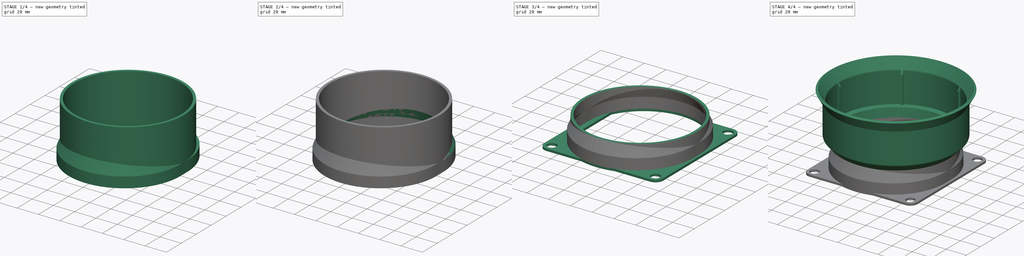
[diagram: build sequence overview — one tinted view per stage of 4, left to right]
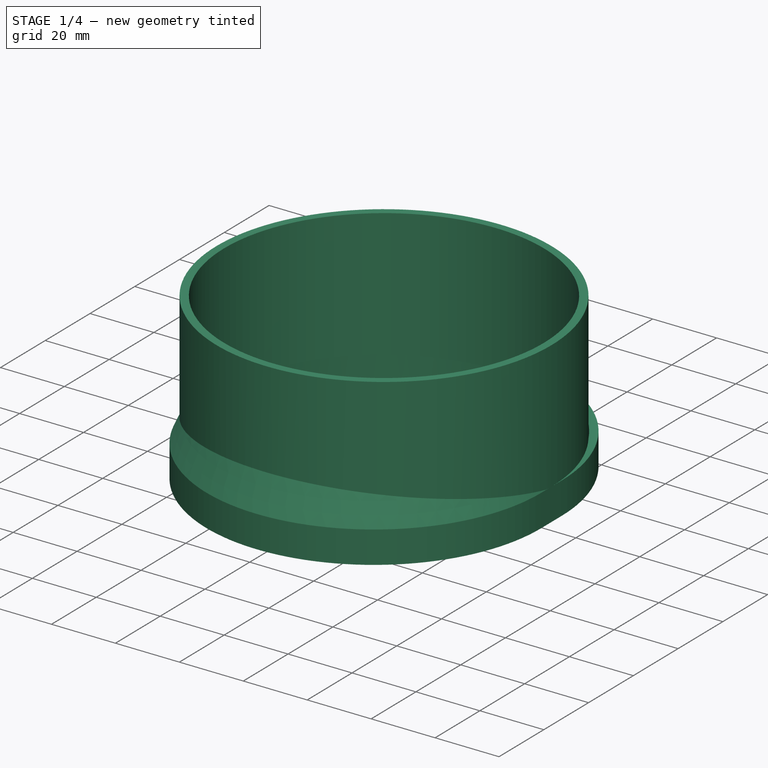
[diagram: stage 1 of 4 — iso view after this stage's code; geometry added in this stage tinted green]
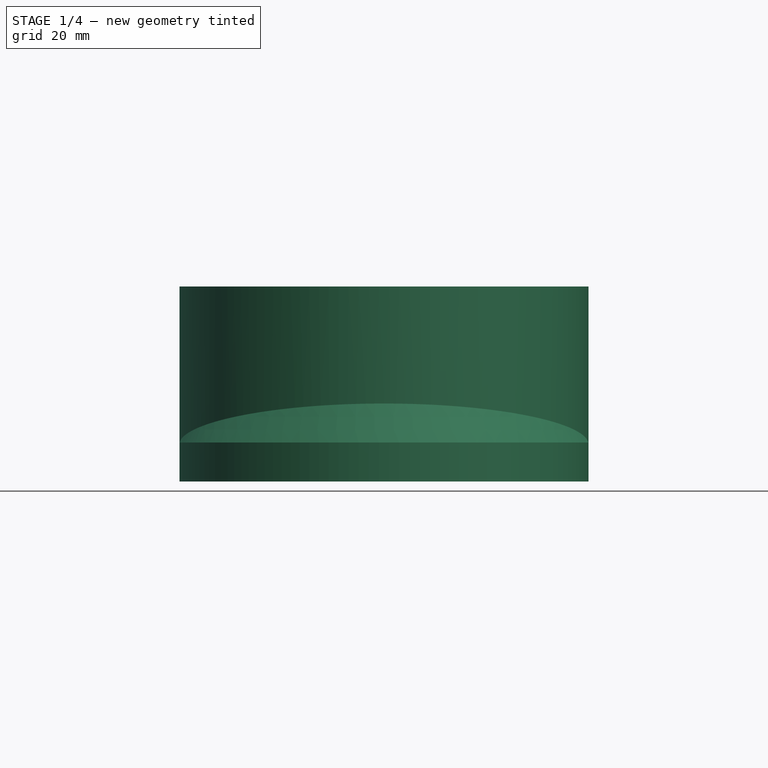
[diagram: stage 1 of 4 — front view after this stage's code; geometry added in this stage tinted green]
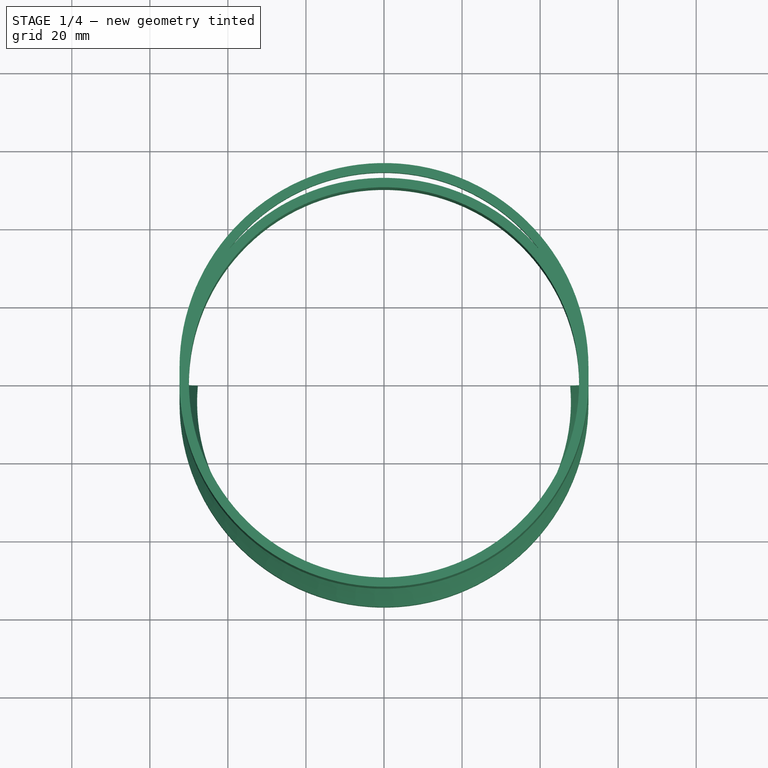
[diagram: stage 1 of 4 — top view after this stage's code; geometry added in this stage tinted green]
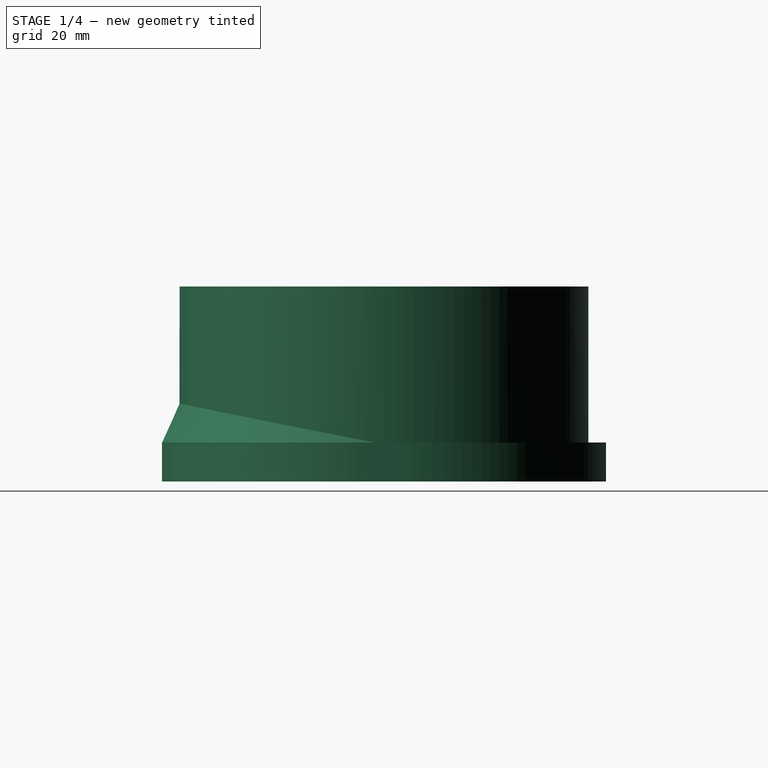
[diagram: stage 1 of 4 — right view after this stage's code; geometry added in this stage tinted green]
FCSTD DOCUMENT  (FreeCAD 0.19R24291 (Git))
Label: Фланец крышек
License: All rights reserved
LicenseURL: http://en.wikipedia.org/wiki/All_rights_reserved
objects: Sketcher::SketchObject×10, PartDesign::Revolution×4, PartDesign::Mirrored×4, PartDesign::Pad×2, PartDesign::Plane×2, PartDesign::Line×2, PartDesign::Pocket×2, PartDesign::MultiTransform×2, PartDesign::Groove×1, PartDesign::PolarPattern×1, PartDesign::Body×1
note: 40 computed .brp shape members not serialized (recipe doc carries the construction recipe); baked Part::Feature solids carry a one-line shape summary decoded from their .brp

FEATURE [Sketcher::SketchObject] Sketch
  FullyConstrained = true
  MapMode = 5
  Placement = pos=(0,0,0) rot=(1,0,0;1.5708rad)
  Support = -> [XZ_Plane]
  sketch-geometry (4):
    g0: LineSegment StartX=50 StartY=0 StartZ=0 EndX=52.4 EndY=0 EndZ=0
    g1: LineSegment StartX=52.4 StartY=0 StartZ=0 EndX=52.4 EndY=40 EndZ=0
    g2: LineSegment StartX=52.4 StartY=40 StartZ=0 EndX=50 EndY=40 EndZ=0
    g3: LineSegment StartX=50 StartY=40 StartZ=0 EndX=50 EndY=0 EndZ=0
  constraints (12):
    c: Coincident(g0,g1)
    c: Coincident(g1,g2)
    c: Coincident(g2,g3)
    c: Coincident(g3,g0)
    c: Horizontal(g0)
    c: Horizontal(g2)
    c: Vertical(g1)
    c: Vertical(g3)
    c: PointOnObject(g0,g-1)
    c: Distance(g0,g-1) = 50
    c: Distance(g0) = 2.4
    c: Distance(g1) = 40
FEATURE [PartDesign::Revolution] Revolution
  Angle = 360
  Axis = (0,-2e-16,1)
  Base = (0,0,0)
  Placement = pos=(0,0,0) rot=(1,0,0;1.5708rad)
  Profile = -> Sketch
  ReferenceAxis = -> Sketch [V_Axis]
  Reversed = true
FEATURE [Sketcher::SketchObject] Sketch001
  FullyConstrained = true
  MapMode = 5
  Support = -> [XY_Plane]
  sketch-geometry (11):
    g0: ArcOfCircle CenterX=0 CenterY=4.5 CenterZ=0 NormalX=0 NormalY=0 NormalZ=1 AngleXU=0 Radius=50 StartAngle=1e-16 EndAngle=3.14159
    g1: ArcOfCircle CenterX=3.1e-15 CenterY=-4.5 CenterZ=0 NormalX=0 NormalY=0 NormalZ=1 AngleXU=0 Radius=50 StartAngle=3.14159 EndAngle=6.28319
    g2: LineSegment StartX=-50 StartY=4.5 StartZ=0 EndX=-50 EndY=-4.5 EndZ=0
    g3: LineSegment StartX=50 StartY=4.5 StartZ=0 EndX=50 EndY=-4.5 EndZ=0
    g4: GeomPoint X=0 Y=54.5 Z=0
    g5: LineSegment StartX=50 StartY=4.5 StartZ=0 EndX=0 EndY=0 EndZ=0
    g6: LineSegment StartX=0 StartY=0 StartZ=0 EndX=-50 EndY=-4.5 EndZ=0
    g7: ArcOfCircle CenterX=3.1e-15 CenterY=-4.5 CenterZ=0 NormalX=0 NormalY=0 NormalZ=1 AngleXU=0 Radius=52.4 StartAngle=3.14159 EndAngle=6.28319
    g8: ArcOfCircle CenterX=0 CenterY=4.5 CenterZ=0 NormalX=0 NormalY=0 NormalZ=1 AngleXU=0 Radius=52.4 StartAngle=0 EndAngle=3.14159
    g9: LineSegment StartX=52.4 StartY=-4.5 StartZ=0 EndX=52.4 EndY=4.5 EndZ=0
    g10: LineSegment StartX=-52.4 StartY=-4.5 StartZ=0 EndX=-52.4 EndY=4.5 EndZ=0
  constraints (24):
    c: Tangent(g0,g3) = 1.5708
    c: Tangent(g0,g2) = -1.5708
    c: Tangent(g2,g1) = -1.5708
    c: Tangent(g3,g1) = 1.5708
    c: Vertical(g2)
    c: Equal(g0,g1)
    c: PointOnObject(g0,g-2)
    c: Diameter(g0) = 100
    c: PointOnObject(g4,g0)
    c: PointOnObject(g4,g-2)
    c: Distance(g-1,g4) = 54.5
    c: Coincident(g5,g0)
    c: Coincident(g5,g-1)
    c: Coincident(g6,g-1)
    c: Coincident(g6,g1)
    c: Equal(g5,g6)
    c: Tangent(g7,g10) = 1.5708
    c: Tangent(g7,g9) = -1.5708
    c: Tangent(g9,g8) = -1.5708
    c: Tangent(g10,g8) = 1.5708
    c: Vertical(g9)
    c: Coincident(g7,g1)
    c: Coincident(g8,g0)
    c: Distance(g1,g7) = 2.4
FEATURE [PartDesign::Pad] Pad
  BaseFeature = -> Revolution
  Direction = (1,1,1)
  Length = 10
  Length2 = 100
  Placement = pos=(0,0,0) rot=(1,0,0;1.5708rad)
  Profile = -> Sketch001
  Reversed = true
  Type = 0
FEATURE [PartDesign::Plane] DatumPlane
  Length = 151.954
  MapMode = 13
  Placement = pos=(-16.6667,4.5,-3.33333) rot=(1,0,0;1.5708rad)
  ResizeMode = 0
  Support = -> [Pad]
  Width = 105.583
FEATURE [Sketcher::SketchObject] Sketch002
  ExternalGeometry = -> [Pad]
  FullyConstrained = false
  MapMode = 5
  Placement = pos=(-16.6667,4.5,-3.33333) rot=(0,0.707107,0.707107;3.14159rad)
  Support = -> [DatumPlane]
  sketch-geometry (3):
    g0: LineSegment StartX=-69.0667 StartY=3.33333 StartZ=0 EndX=-66.6667 EndY=3.33333 EndZ=0
    g1: LineSegment StartX=-66.6667 StartY=3.33333 StartZ=0 EndX=-66.6667 EndY=15.8343 EndZ=0
    g2: LineSegment StartX=-66.6667 StartY=15.8343 StartZ=0 EndX=-69.0667 EndY=3.33333 EndZ=0
  constraints (6):
    c: Coincident(g-4,g0)
    c: Coincident(g0,g-3)
    c: Coincident(g0,g1)
    c: Vertical(g1)
    c: Coincident(g1,g2)
    c: Coincident(g2,g0)
FEATURE [PartDesign::Line] DatumLine
  AttacherType = Attacher::AttachEngineLine
  Length = 20
  MapMode = 19
  Placement = pos=(-4e-16,4.5,0) rot=(0,0,1;0.524908rad)
  ResizeMode = 0
  Support = -> [Pad]
FEATURE [Sketcher::SketchObject] Sketch003
  ExternalGeometry = -> [Pad]
  FullyConstrained = true
  MapMode = 5
  Placement = pos=(0,0,0) rot=(0.57735,0.57735,0.57735;2.0944rad)
  Support = -> [YZ_Plane]
  sketch-geometry (4):
    g0: LineSegment StartX=-52.4 StartY=-2.62e-14 StartZ=0 EndX=-52.4 EndY=10 EndZ=0
    g1: LineSegment StartX=-52.4 StartY=10 StartZ=0 EndX=-56.9 EndY=-1.6e-14 EndZ=0
    g2: LineSegment StartX=-56.9 StartY=-1.58e-14 StartZ=0 EndX=-52.4 EndY=-2.62e-14 EndZ=0
    g3: LineSegment StartX=-52.4 StartY=-2.62e-14 StartZ=0 EndX=-52.4 EndY=40 EndZ=0
  constraints (10):
    c: Coincident(g0,g-3)
    c: Coincident(g1,g0)
    c: Coincident(g1,g-4)
    c: Coincident(g2,g1)
    c: Coincident(g2,g0)
    c: Coincident(g3,g0)
    c: Coincident(g3,g-5)
    c: PointOnObject(g0,g3)
    c: Distance(g0) = 10
    c: Angle(g2,g1) = 1.14794
FEATURE [PartDesign::Line] DatumLine001
  AttacherType = Attacher::AttachEngineLine
  Length = 20
  MapMode = 19
  Placement = pos=(7.1e-15,-4.5,0) rot=(0,0,1;3.6665rad)
  ResizeMode = 0
  Support = -> [Pad]
FEATURE [PartDesign::Revolution] Revolution001
  Angle = 190
  Axis = (-1e-16,1e-16,1)
  Base = (7.1e-15,-4.5,0)
  BaseFeature = -> Pad
  Midplane = true
  Placement = pos=(0,0,0) rot=(1,0,0;1.5708rad)
  Profile = -> Sketch003
  ReferenceAxis = -> DatumLine001
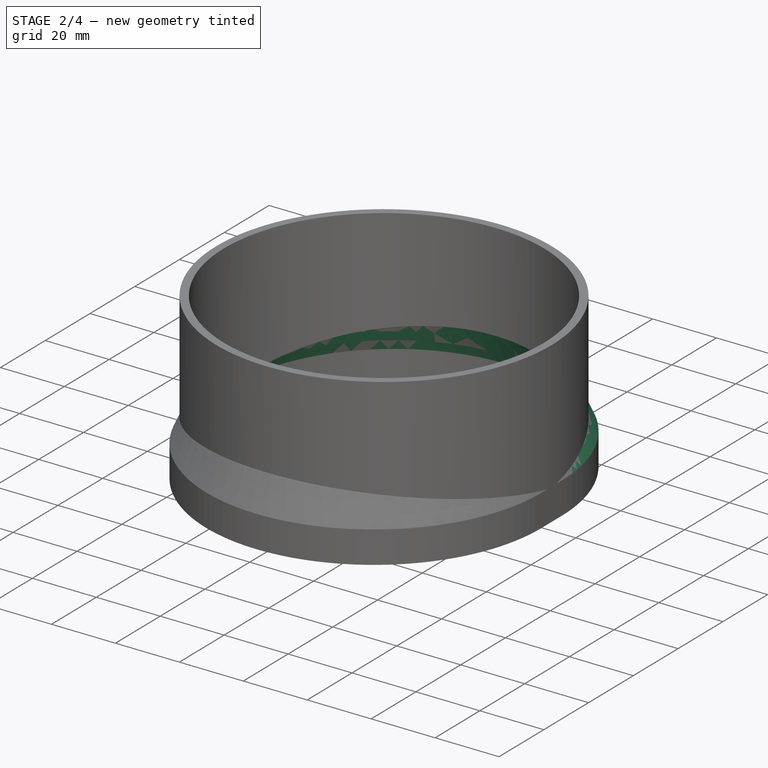
[diagram: stage 2 of 4 — iso view after this stage's code; geometry added in this stage tinted green]
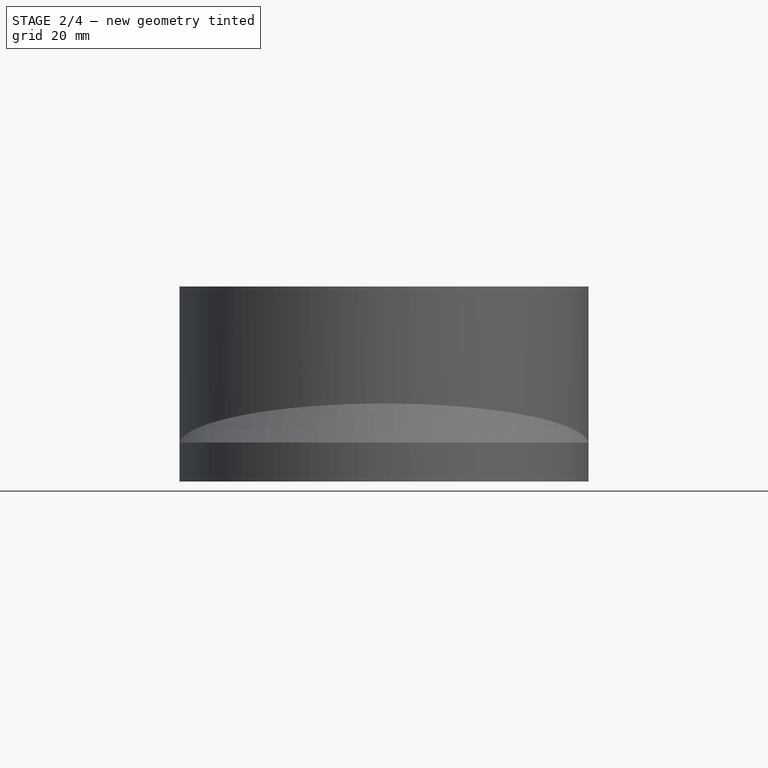
[diagram: stage 2 of 4 — front view after this stage's code; geometry added in this stage tinted green]
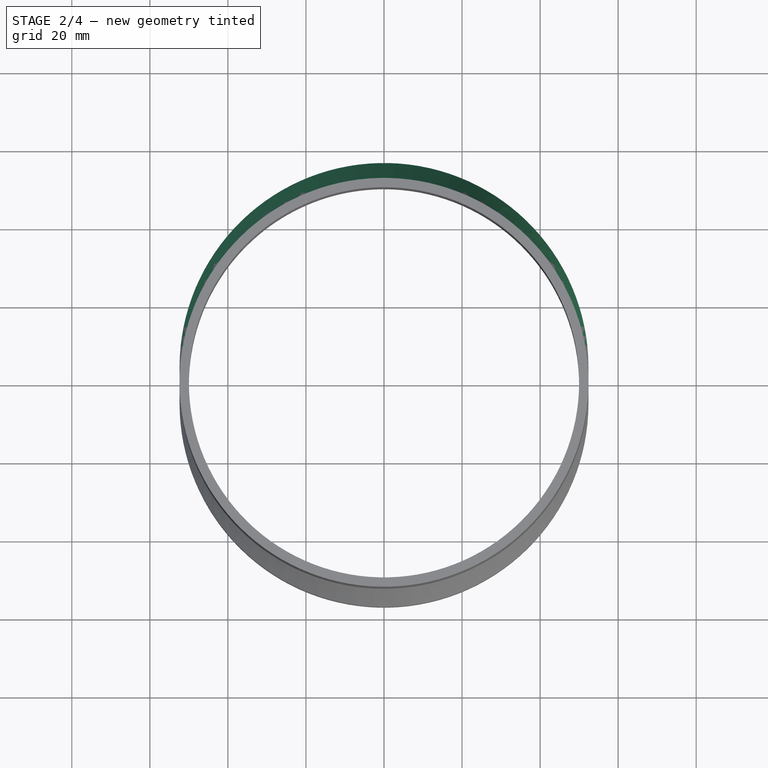
[diagram: stage 2 of 4 — top view after this stage's code; geometry added in this stage tinted green]
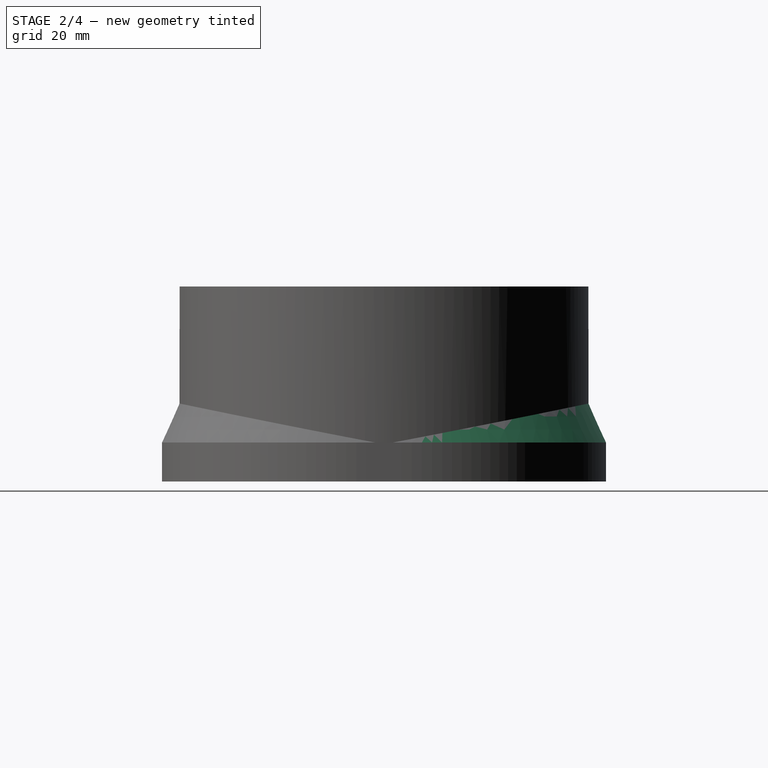
[diagram: stage 2 of 4 — right view after this stage's code; geometry added in this stage tinted green]
FEATURE [Sketcher::SketchObject] Sketch004
  ExternalGeometry = -> [Pad]
  FullyConstrained = false
  MapMode = 5
  Placement = pos=(0,0,0) rot=(0.57735,0.57735,0.57735;2.0944rad)
  Support = -> [YZ_Plane]
  expr: Constraints[8] = Sketch003.Constraints[8]
  sketch-geometry (7):
    g0: LineSegment StartX=-52.4 StartY=-2.62e-14 StartZ=0 EndX=-52.4 EndY=10 EndZ=0
    g1: LineSegment StartX=-52.4 StartY=10 StartZ=0 EndX=-56.9 EndY=-1.6e-14 EndZ=0
    g2: LineSegment StartX=-56.9 StartY=-1.58e-14 StartZ=0 EndX=-52.4 EndY=-2.62e-14 EndZ=0
    g3: LineSegment StartX=-52.4 StartY=-2.62e-14 StartZ=0 EndX=-52.4 EndY=40 EndZ=0
    g4: LineSegment StartX=-54.2682 StartY=-2.19e-14 StartZ=0 EndX=-24.9963 EndY=65.0486 EndZ=0
    g5: LineSegment StartX=-24.9963 StartY=65.0486 StartZ=0 EndX=-24.9963 EndY=-1.42e-14 EndZ=0
    g6: LineSegment StartX=-24.9963 StartY=-1.42e-14 StartZ=0 EndX=-54.2682 EndY=-2.19e-14 EndZ=0
  constraints (17):
    c: Coincident(g0,g-3)
    c: Coincident(g1,g0)
    c: Coincident(g1,g-4)
    c: Coincident(g2,g1)
    c: Coincident(g2,g0)
    c: Coincident(g3,g0)
    c: Coincident(g3,g-5)
    c: PointOnObject(g0,g3)
    c: Distance(g0) = 10
    c: PointOnObject(g4,g2)
    c: Parallel(g4,g1)
    c: Distance(g4,g1) = 2.4
    c: Coincident(g5,g4)
    c: PointOnObject(g5,g-4)
    c: Vertical(g5)
    c: Coincident(g6,g5)
    c: Coincident(g6,g4)
FEATURE [PartDesign::Groove] Groove
  Angle = 360
  Axis = (-1e-16,1e-16,1)
  Base = (7.1e-15,-4.5,0)
  BaseFeature = -> Revolution001
  Placement = pos=(0,0,0) rot=(1,0,0;1.5708rad)
  Profile = -> Sketch004
  ReferenceAxis = -> DatumLine001
  Reversed = true
FEATURE [PartDesign::Mirrored] Mirrored
  BaseFeature = -> Groove
  MirrorPlane = -> Sketch003 [V_Axis]
  Originals = -> [Revolution001,Groove]
  Placement = pos=(0,0,0) rot=(1,0,0;1.5708rad)
FEATURE [Sketcher::SketchObject] Sketch005
  ExternalGeometry = -> [Mirrored]
  FullyConstrained = true
  MapMode = 5
  Placement = pos=(0,-8.9e-15,40) rot=(0,0,1;3.14159rad)
  Support = -> [Mirrored]
  sketch-geometry (1):
    g0: Circle CenterX=0 CenterY=0 CenterZ=0 NormalX=0 NormalY=0 NormalZ=1 AngleXU=0 Radius=50
  constraints (3):
    c: Coincident(g0,g-1)
    c: Equal(g-3,g0)
    c: Diameter(g0) = 100
FEATURE [PartDesign::Pocket] Pocket
  BaseFeature = -> Mirrored
  Length = 5
  Length2 = 100
  Placement = pos=(0,0,0) rot=(1,0,0;1.5708rad)
  Profile = -> Sketch005
  Type = 1
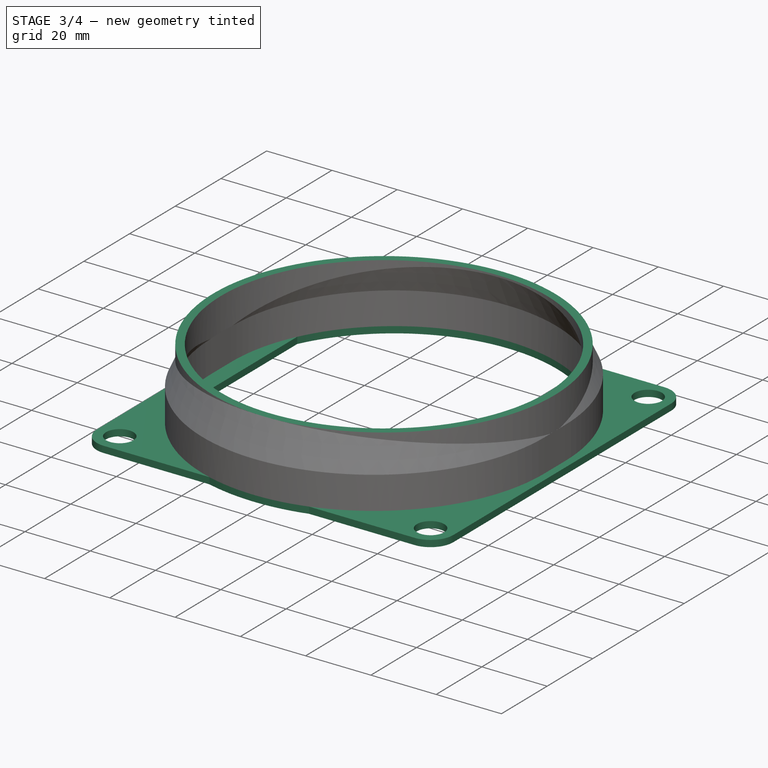
[diagram: stage 3 of 4 — iso view after this stage's code; geometry added in this stage tinted green]
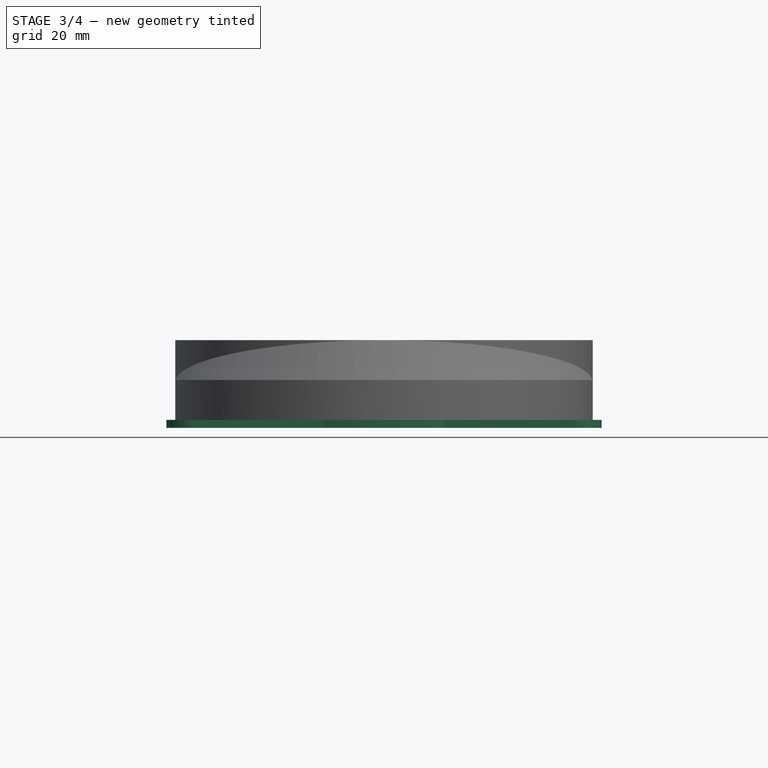
[diagram: stage 3 of 4 — front view after this stage's code; geometry added in this stage tinted green]
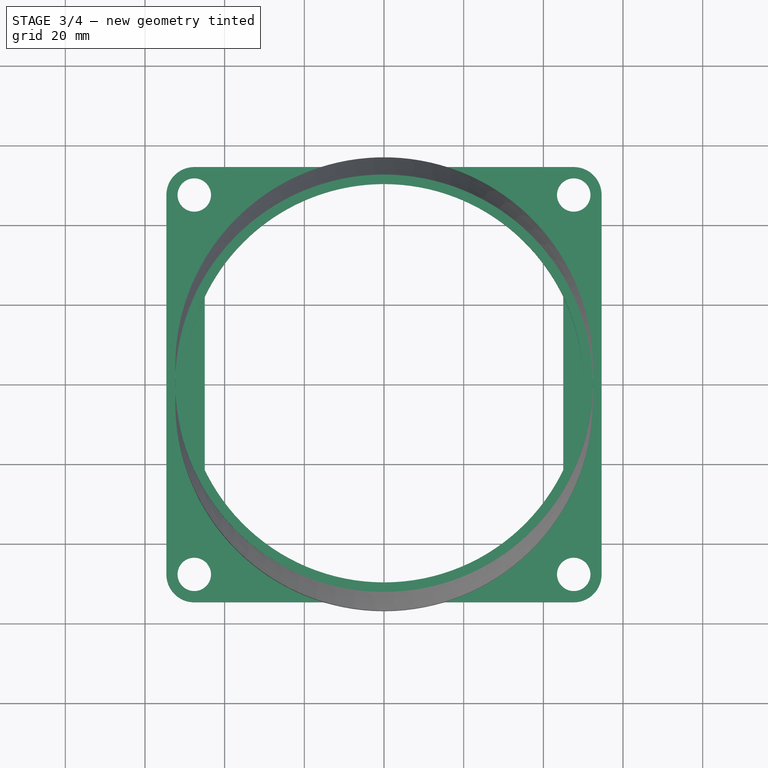
[diagram: stage 3 of 4 — top view after this stage's code; geometry added in this stage tinted green]
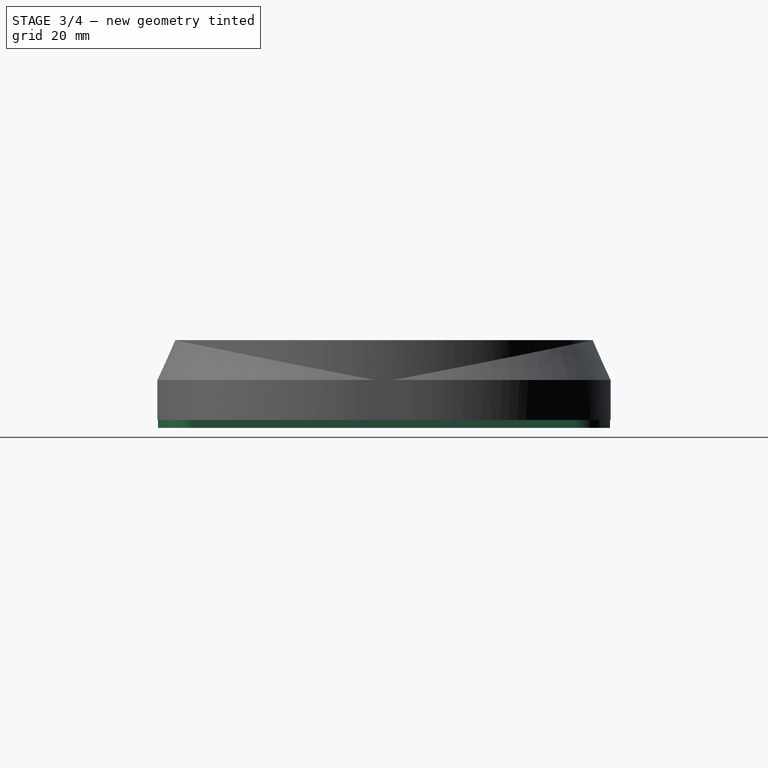
[diagram: stage 3 of 4 — right view after this stage's code; geometry added in this stage tinted green]
FEATURE [Sketcher::SketchObject] Sketch006
  ExternalGeometry = -> [Pocket]
  FullyConstrained = false
  MapMode = 5
  Placement = pos=(0,0,-10) rot=(1,0,0;3.14159rad)
  Support = -> [Pocket]
  sketch-geometry (10):
    g0: LineSegment StartX=0 StartY=0 StartZ=0 EndX=66.8748 EndY=66.8748 EndZ=0
    g1: LineSegment StartX=54.625 StartY=47.625 StartZ=0 EndX=54.625 EndY=0 EndZ=0
    g2: LineSegment StartX=54.625 StartY=0 StartZ=0 EndX=45 EndY=0 EndZ=0
    g3: LineSegment StartX=45 StartY=0 StartZ=0 EndX=45 EndY=26.2945 EndZ=0
    g4: Circle CenterX=47.625 CenterY=47.625 CenterZ=0 NormalX=0 NormalY=0 NormalZ=1 AngleXU=0 Radius=4.2
    g5: ArcOfCircle CenterX=47.625 CenterY=47.625 CenterZ=0 NormalX=0 NormalY=0 NormalZ=1 AngleXU=0 Radius=7 StartAngle=6.28318 EndAngle=7.85398
    g6: LineSegment StartX=47.625 StartY=54.625 StartZ=0 EndX=15.2723 EndY=54.625 EndZ=0
    g7: ArcOfCircle CenterX=0 CenterY=0 CenterZ=0 NormalX=0 NormalY=0 NormalZ=1 AngleXU=0 Radius=56.7198 StartAngle=1.29817 EndAngle=1.5708
    g8: LineSegment StartX=-4.9e-15 StartY=56.7198 StartZ=0 EndX=-4.9e-15 EndY=54.5 EndZ=0
    g9: ArcOfCircle CenterX=3.1e-15 CenterY=4.5 CenterZ=0 NormalX=0 NormalY=0 NormalZ=1 AngleXU=0 Radius=50 StartAngle=0.451027 EndAngle=1.5708
  constraints (29):
    c: Coincident(g0,g-1)
    c: Angle(g-1,g0) = 0.785398
    c: PointOnObject(g1,g-1)
    c: Vertical(g1)
    c: Coincident(g2,g1)
    c: PointOnObject(g2,g-1)
    c: Distance(g2,g-2) = 45
    c: Coincident(g3,g2)
    c: PointOnObject(g3,g-3)
    c: Vertical(g3)
    c: Diameter(g4) = 8.4
    c: Coincident(g5,g4)
    c: Coincident(g5,g1)
    c: Tangent(g5,g1)
    c: Diameter(g5) = 14
    c: Coincident(g6,g5)
    c: PointOnObject(g6,g-4)
    c: Horizontal(g6)
    c: Coincident(g7,g-1)
    c: Coincident(g7,g6)
    c: PointOnObject(g7,g-2)
    c: Coincident(g8,g7)
    c: Vertical(g8)
    c: Coincident(g9,g-4)
    c: Coincident(g9,g8)
    c: Coincident(g9,g3)
    c: Tangent(g6,g5)
    c: PointOnObject(g4,g0)
    c: Distance(g4,g-1) = 47.625
FEATURE [PartDesign::Pad] Pad001
  BaseFeature = -> Pocket
  Direction = (1,1,1)
  Length = 2
  Length2 = 100
  Placement = pos=(0,0,0) rot=(1,0,0;1.5708rad)
  Profile = -> Sketch006
  Type = 0
FEATURE [PartDesign::Mirrored] Mirrored001
  MirrorPlane = -> Sketch006 [V_Axis]
  Placement = pos=(0,0,0) rot=(1,0,0;1.5708rad)
FEATURE [PartDesign::Mirrored] Mirrored002
  MirrorPlane = -> Sketch006 [H_Axis]
  Placement = pos=(0,0,0) rot=(1,0,0;1.5708rad)
FEATURE [PartDesign::MultiTransform] MultiTransform
  BaseFeature = -> Pad001
  Originals = -> [Pad001]
  Placement = pos=(0,0,0) rot=(1,0,0;1.5708rad)
  Transformations = -> [Mirrored001,Mirrored002]
FEATURE [PartDesign::Plane] DatumPlane001
  Length = 157.241
  MapMode = 49
  Placement = pos=(-2.08263e-06,-52.4,10) rot=(0,0,1;1.5708rad)
  ResizeMode = 0
  Support = -> [MultiTransform]
  Width = 157.109
FEATURE [Sketcher::SketchObject] Sketch007
  FullyConstrained = false
  MapMode = 5
  Placement = pos=(-2.08263e-06,-52.4,10) rot=(0,0,1;1.5708rad)
  Support = -> [DatumPlane001]
  sketch-geometry (4):
    g0: LineSegment StartX=-9.77936 StartY=55.8317 StartZ=0 EndX=113.676 EndY=55.8317 EndZ=0
    g1: LineSegment StartX=113.676 StartY=55.8317 StartZ=0 EndX=113.676 EndY=-54.7518 EndZ=0
    g2: LineSegment StartX=113.676 StartY=-54.7518 StartZ=0 EndX=-9.77936 EndY=-54.7518 EndZ=0
    g3: LineSegment StartX=-9.77936 StartY=-54.7518 StartZ=0 EndX=-9.77936 EndY=55.8317 EndZ=0
  constraints (8):
    c: Coincident(g0,g1)
    c: Coincident(g1,g2)
    c: Coincident(g2,g3)
    c: Coincident(g3,g0)
    c: Horizontal(g0)
    c: Horizontal(g2)
    c: Vertical(g1)
    c: Vertical(g3)
FEATURE [PartDesign::Pocket] Pocket001
  BaseFeature = -> MultiTransform
  Length = 5
  Length2 = 100
  Placement = pos=(0,0,0) rot=(1,0,0;1.5708rad)
  Profile = -> Sketch007
  Reversed = true
  Type = 1
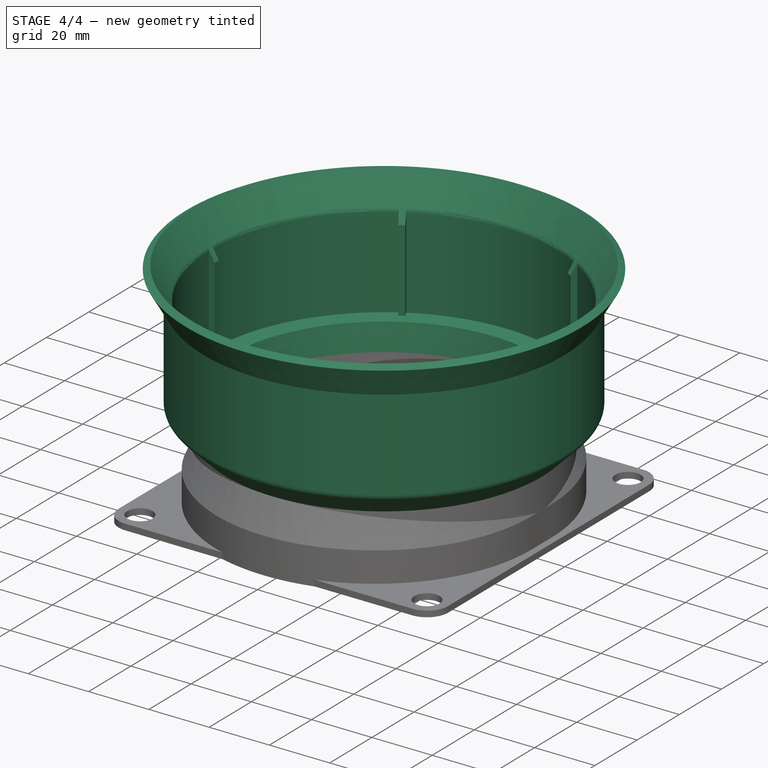
[diagram: stage 4 of 4 — iso view after this stage's code; geometry added in this stage tinted green]
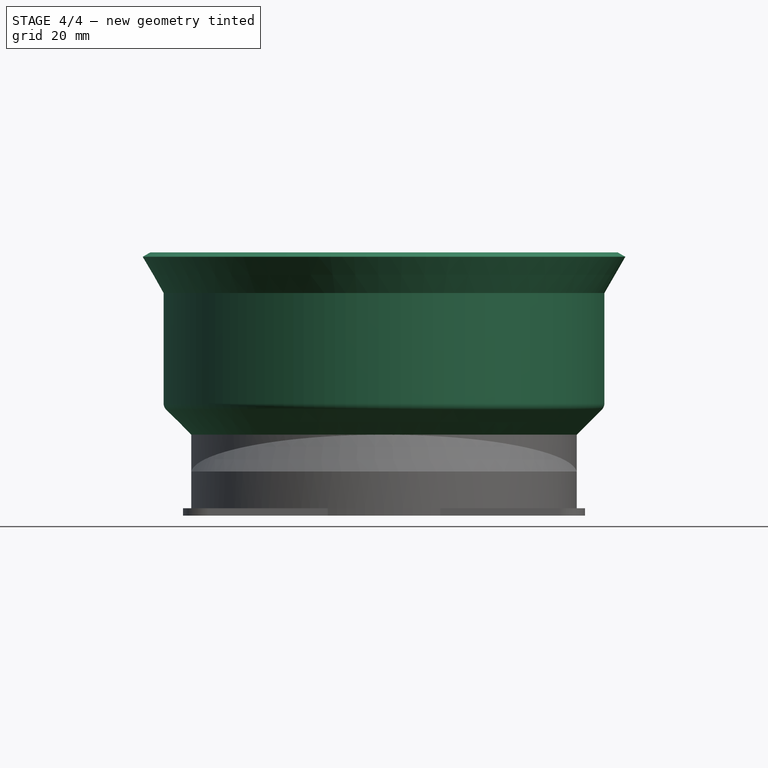
[diagram: stage 4 of 4 — front view after this stage's code; geometry added in this stage tinted green]
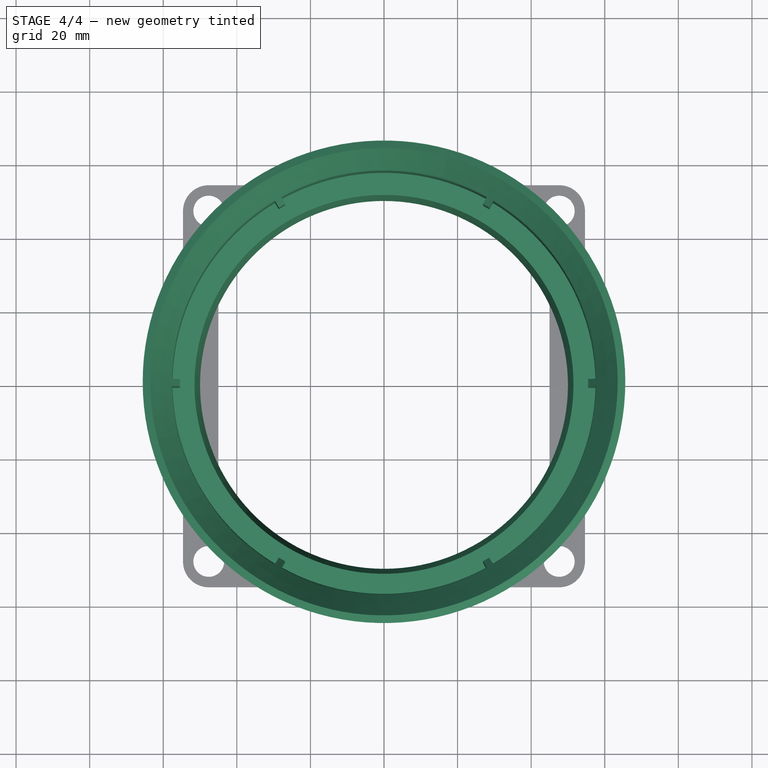
[diagram: stage 4 of 4 — top view after this stage's code; geometry added in this stage tinted green]
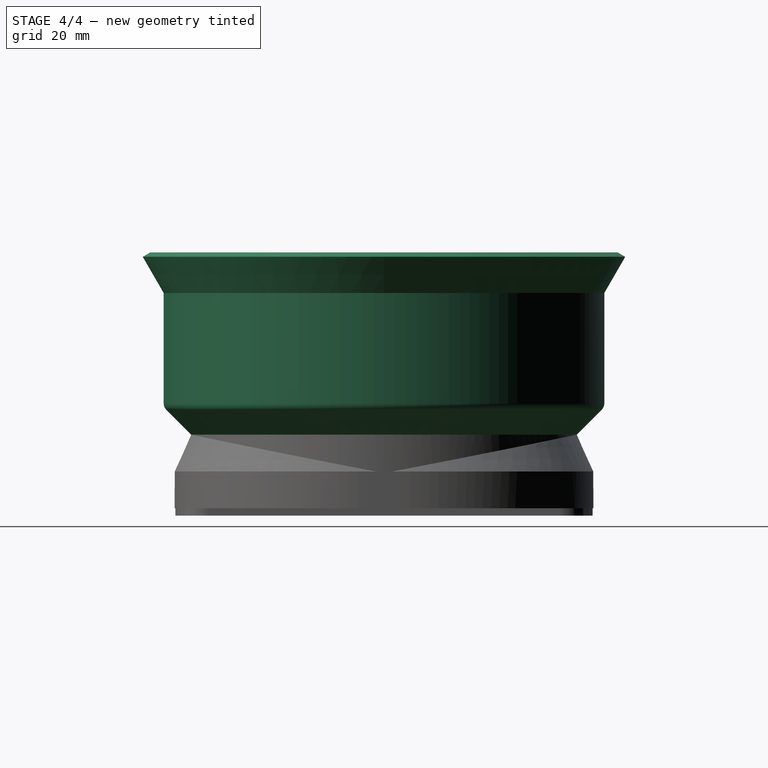
[diagram: stage 4 of 4 — right view after this stage's code; geometry added in this stage tinted green]
FEATURE [Sketcher::SketchObject] Sketch008
  ExternalGeometry = -> [Pocket001]
  FullyConstrained = false
  MapMode = 5
  Placement = pos=(0,0,0) rot=(1,0,0;1.5708rad)
  Support = -> [XZ_Plane]
  sketch-geometry (11):
    g0: LineSegment StartX=50 StartY=10 StartZ=0 EndX=51.5 EndY=18.4941 EndZ=0
    g1: LineSegment StartX=51.5 StartY=18.4941 StartZ=0 EndX=57.5 EndY=18.4941 EndZ=0
    g2: LineSegment StartX=52.4 StartY=10 StartZ=0 EndX=59.1971 EndY=16.7971 EndZ=0
    g3: ArcOfCircle CenterX=57.5 CenterY=18.4941 CenterZ=0 NormalX=0 NormalY=0 NormalZ=1 AngleXU=0 Radius=2.4 StartAngle=5.49779 EndAngle=6.28319
    g4: LineSegment StartX=59.9 StartY=18.4941 StartZ=0 EndX=59.9 EndY=48.4941 EndZ=0
    g5: LineSegment StartX=57.5 StartY=48.4885 StartZ=0 EndX=57.5 EndY=18.4941 EndZ=0
    g6: ArcOfCircle CenterX=59.9 CenterY=48.4941 CenterZ=0 NormalX=0 NormalY=0 NormalZ=1 AngleXU=0 Radius=2.40001 StartAngle=2.52924 EndAngle=3.14394
    g7: LineSegment StartX=59.9 StartY=48.4941 StartZ=0 EndX=65.5886 EndY=58.347 EndZ=0
    g8: LineSegment StartX=57.9361 StartY=49.8736 StartZ=0 EndX=63.5183 EndY=59.5423 EndZ=0
    g9: LineSegment StartX=63.5183 StartY=59.5423 StartZ=0 EndX=65.5886 EndY=58.347 EndZ=0
    g10: LineSegment StartX=50 StartY=10 StartZ=0 EndX=52.4 EndY=10 EndZ=0
  constraints (28):
    c: Coincident(g0,g-4)
    c: Distance(g0,g-2) = 51.5
    c: Coincident(g1,g0)
    c: Horizontal(g1)
    c: Distance(g1,g-2) = 57.5
    c: Coincident(g2,g-3)
    c: Distance(g1,g2) = 2.4
    c: Angle(g2,g-3) = 2.35619
    c: Coincident(g3,g1)
    c: Coincident(g3,g2)
    c: Vertical(g4)
    c: Vertical(g5)
    c: Coincident(g4,g3)
    c: Coincident(g5,g1)
    c: Tangent(g3,g2)
    c: Tangent(g3,g4)
    c: Distance(g4) = 30
    c: Coincident(g6,g4)
    c: Coincident(g6,g5)
    c: Coincident(g7,g4)
    c: Coincident(g8,g6)
    c: Coincident(g9,g8)
    c: Coincident(g9,g7)
    c: Angle(g5,g8) = 2.61799
    c: Parallel(g7,g8)
    c: Perpendicular(g7,g9)
    c: Coincident(g10,g0)
    c: Coincident(g10,g2)
FEATURE [PartDesign::Revolution] Revolution002
  Angle = 360
  Axis = (0,-2e-16,1)
  Base = (0,0,0)
  BaseFeature = -> Pocket001
  Placement = pos=(0,0,0) rot=(1,0,0;1.5708rad)
  Profile = -> Sketch008
  ReferenceAxis = -> Sketch008 [V_Axis]
  Reversed = true
FEATURE [Sketcher::SketchObject] Sketch009
  ExternalGeometry = -> [Revolution002]
  FullyConstrained = false
  MapMode = 5
  Placement = pos=(0,0,0) rot=(1,0,0;1.5708rad)
  Support = -> [XZ_Plane]
  sketch-geometry (5):
    g0: LineSegment StartX=57.5 StartY=18.4941 StartZ=0 EndX=55.5 EndY=18.4941 EndZ=0
    g1: LineSegment StartX=55.5 StartY=18.4941 StartZ=0 EndX=55.5 EndY=45.6542 EndZ=0
    g2: LineSegment StartX=57.5 StartY=48.4885 StartZ=0 EndX=57.5 EndY=18.4941 EndZ=0
    g3: LineSegment StartX=55.5 StartY=45.6542 StartZ=0 EndX=57.7233 EndY=49.5052 EndZ=0
    g4: ArcOfCircle CenterX=59.9 CenterY=48.4941 CenterZ=0 NormalX=0 NormalY=0 NormalZ=1 AngleXU=0 Radius=2.40001 StartAngle=2.70675 EndAngle=3.14394
  constraints (12):
    c: Coincident(g0,g1)
    c: Coincident(g2,g0)
    c: Horizontal(g0)
    c: Vertical(g1)
    c: Coincident(g0,g-3)
    c: Coincident(g3,g1)
    c: Parallel(g3,g-4)
    c: Distance(g0) = 2
    c: Coincident(g2,g-3)
    c: Coincident(g4,g-5)
    c: Coincident(g4,g2)
    c: Coincident(g3,g4)
FEATURE [PartDesign::Revolution] Revolution003
  Angle = 1
  Axis = (0,-2e-16,1)
  Base = (0,0,0)
  BaseFeature = -> Revolution002
  Placement = pos=(0,0,0) rot=(1,0,0;1.5708rad)
  Profile = -> Sketch009
  ReferenceAxis = -> Sketch009 [V_Axis]
  Reversed = true
FEATURE [PartDesign::Mirrored] Mirrored003
  MirrorPlane = -> XZ_Plane
  Placement = pos=(0,0,0) rot=(1,0,0;1.5708rad)
FEATURE [PartDesign::PolarPattern] PolarPattern
  Angle = 360
  Axis = -> Sketch009 [V_Axis]
  Occurrences = 6
  Placement = pos=(0,0,0) rot=(1,0,0;1.5708rad)
FEATURE [PartDesign::MultiTransform] MultiTransform001
  BaseFeature = -> Revolution003
  Originals = -> [Revolution003]
  Placement = pos=(0,0,0) rot=(1,0,0;1.5708rad)
  Transformations = -> [Mirrored003,PolarPattern]
FEATURE [PartDesign::Body] Body
  Group = -> [Sketch,Revolution,Sketch001,Pad,DatumPlane,Sketch002,DatumLine,Sketch003,DatumLine001,Revolution001,Sketch004,Groove,Mirrored,Sketch005,Pocket,Sketch006,Pad001,MultiTransform,Mirrored001,Mirrored002,DatumPlane001,Sketch007,Pocket001,Sketch008,Revolution002,Sketch009,Revolution003,MultiTransform001,Mirrored003,PolarPattern]
  Origin = -> Origin
  Tip = -> MultiTransform001
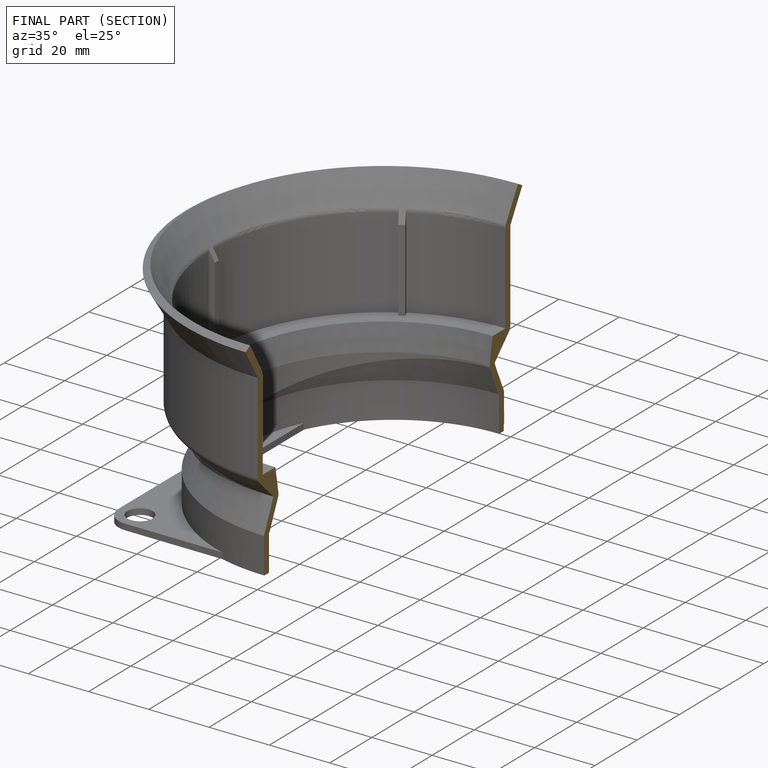
[diagram: finished part — half-section view (interior)]
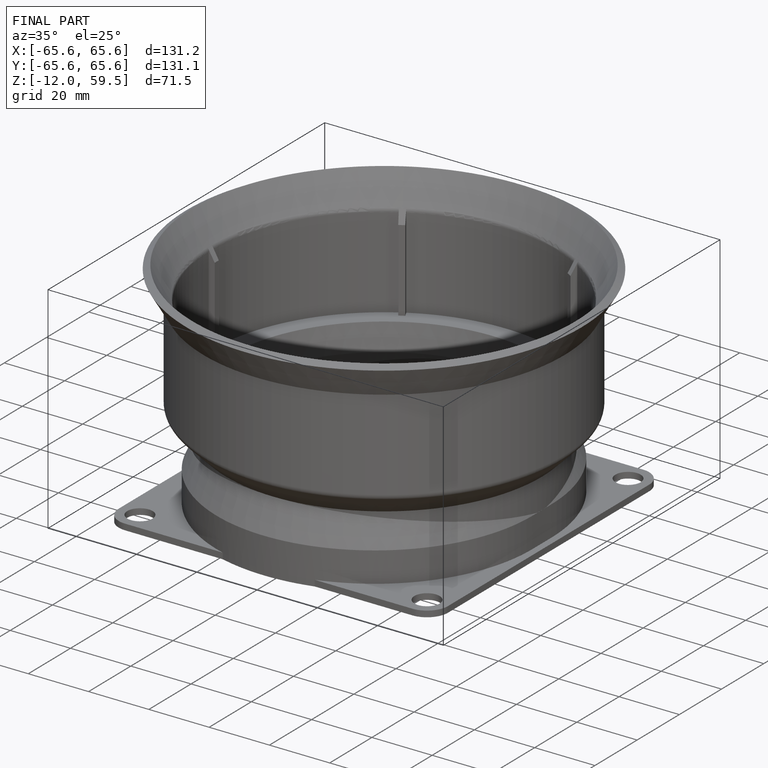
[diagram: finished part — iso view with bounding-box wireframe]
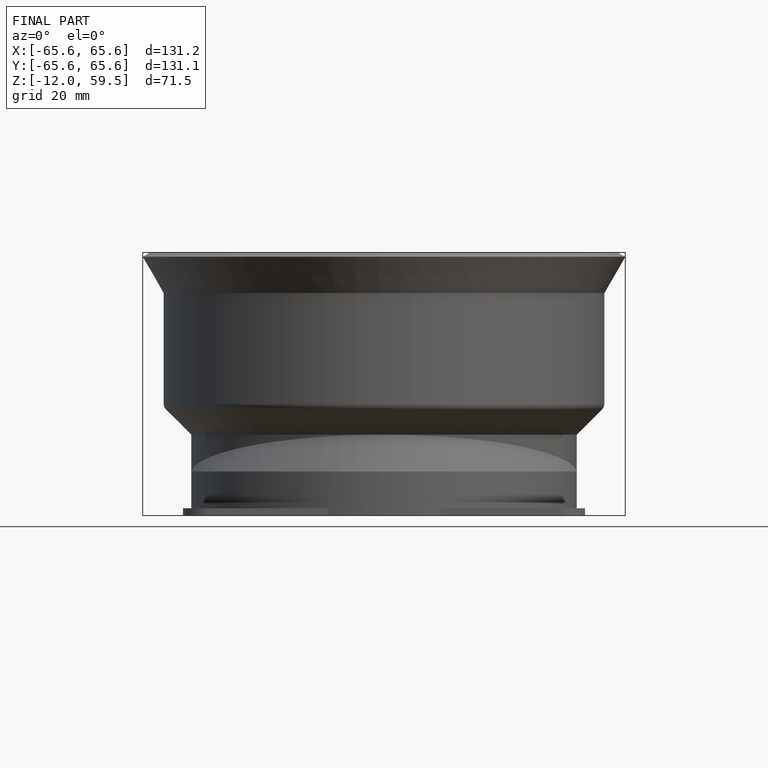
[diagram: finished part — front view with bounding-box wireframe]
